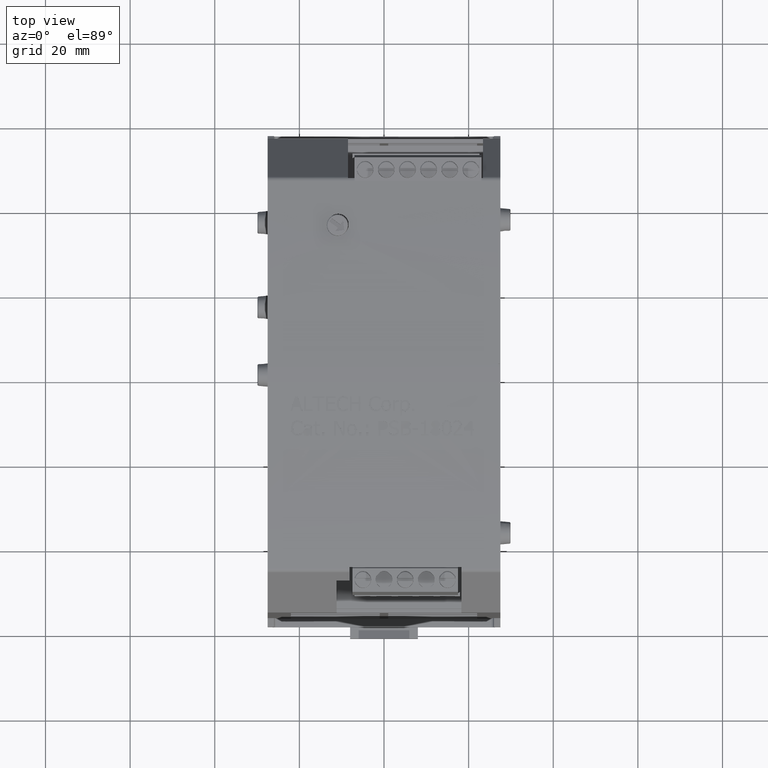
[diagram: clean part render]
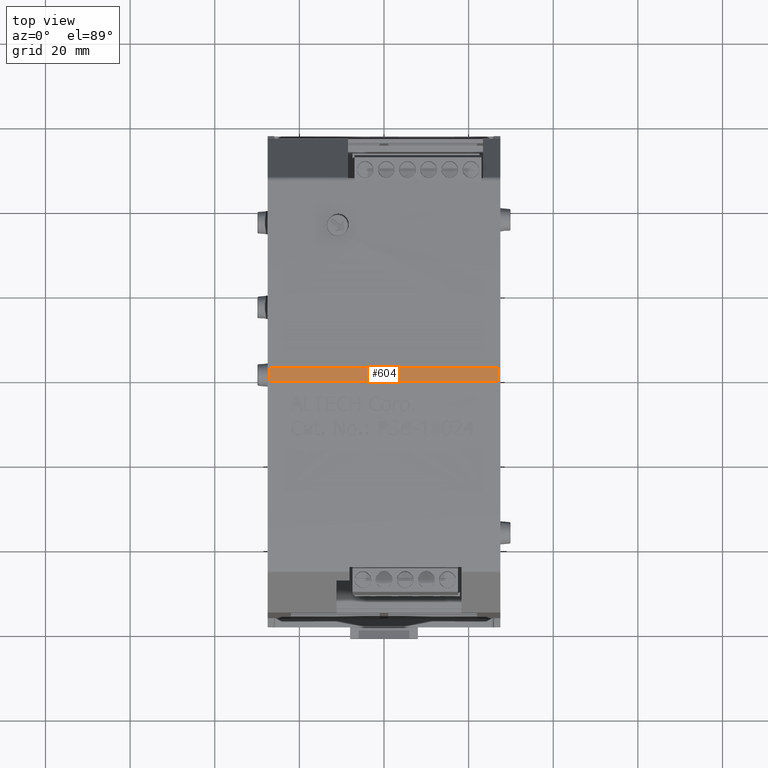
[diagram: same view with one face highlighted and labeled with its STEP entity id]
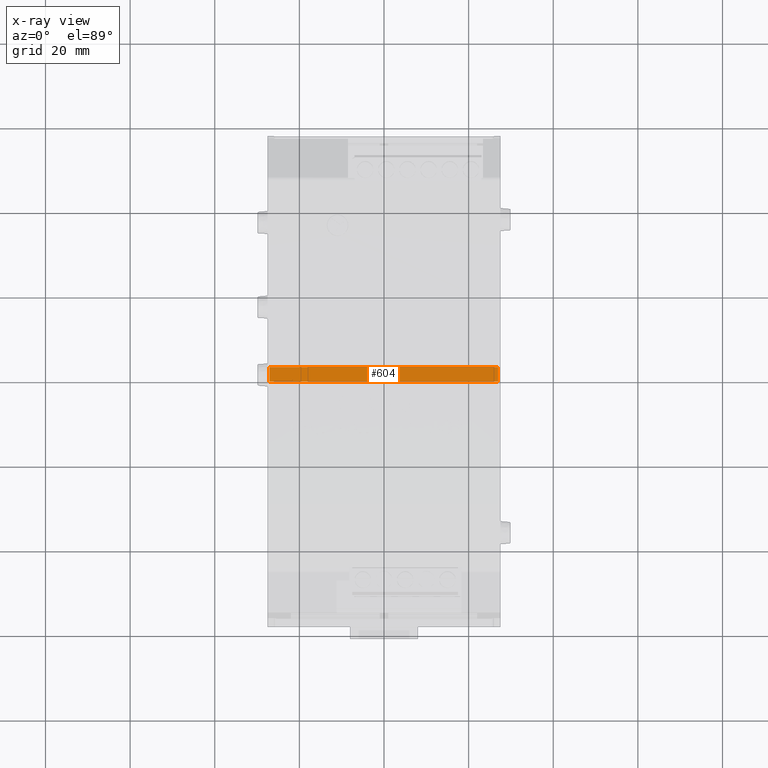
[diagram: x-ray of the same camera — body ghosted, the highlighted face saturated]
A machine part, top view. The second image highlights one B-rep face of the part: STEP entity #604.
The next image is the same camera in x-ray: the body ghosted, the highlighted face saturated — about 0% of this face is hidden behind the body in this view.
In plain terms, the highlighted planar face has unit normal (-0, -0, 1).
Its self-contained STEP definition (entity closure, byte-faithful):
#153=CARTESIAN_POINT('',(1.06182292687699,0.066929133858276,4.059055118110803));
#154=VERTEX_POINT('',#153);
#172=CARTESIAN_POINT('',(-1.068169326593714,0.066929133858276,4.059055118110803));
#173=VERTEX_POINT('',#172);
#181=CARTESIAN_POINT('',(-1.068169326593714,0.066929133858276,4.059055118110803));
#182=DIRECTION('',(1.0,0.0,0.0));
#183=VECTOR('',#182,2.129992253470704);
#184=LINE('',#181,#183);
#185=EDGE_CURVE('',#173,#154,#184,.T.);
#574=CARTESIAN_POINT('',(1.082677165354315,-2.569833236969427,4.059055118110027));
#575=DIRECTION('',(-1.851262E-017,-2.943296E-013,1.0));
#576=DIRECTION('',(-1.0,0.0,0.0));
#577=AXIS2_PLACEMENT_3D('',#574,#575,#576);
#578=PLANE('',#577);
#579=CARTESIAN_POINT('',(1.06182292687699,-0.06692913385826,4.05905511811076));
#580=VERTEX_POINT('',#579);
#581=CARTESIAN_POINT('',(1.06182292687699,-0.06692913385826,4.05905511811076));
#582=DIRECTION('',(0.0,1.0,3.184903E-013));
#583=VECTOR('',#582,0.133858267716535);
#584=LINE('',#581,#583);
#585=EDGE_CURVE('',#580,#154,#584,.T.);
#586=ORIENTED_EDGE('',*,*,#585,.T.);
#587=ORIENTED_EDGE('',*,*,#185,.F.);
#588=CARTESIAN_POINT('',(-1.068169326593714,-0.06692913385826,4.05905511811076));
#589=VERTEX_POINT('',#588);
#590=CARTESIAN_POINT('',(-1.068169326593714,0.066929133858276,4.059055118110803));
#591=DIRECTION('',(0.0,-1.0,-3.184903E-013));
#592=VECTOR('',#591,0.133858267716535);
#593=LINE('',#590,#592);
#594=EDGE_CURVE('',#173,#589,#593,.T.);
#595=ORIENTED_EDGE('',*,*,#594,.T.);
#596=CARTESIAN_POINT('',(-1.068169326593714,-0.06692913385826,4.05905511811076));
#597=DIRECTION('',(1.0,0.0,0.0));
#598=VECTOR('',#597,2.129992253470704);
#599=LINE('',#596,#598);
#600=EDGE_CURVE('',#589,#580,#599,.T.);
#601=ORIENTED_EDGE('',*,*,#600,.T.);
#602=EDGE_LOOP('',(#586,#587,#595,#601));
#603=FACE_OUTER_BOUND('',#602,.T.);
#604=ADVANCED_FACE('',(#603),#578,.T.);